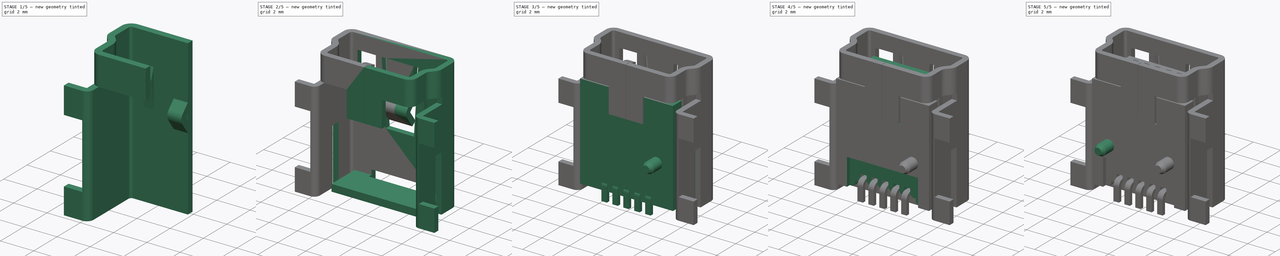
[diagram: build sequence overview — one tinted view per stage of 5, left to right]
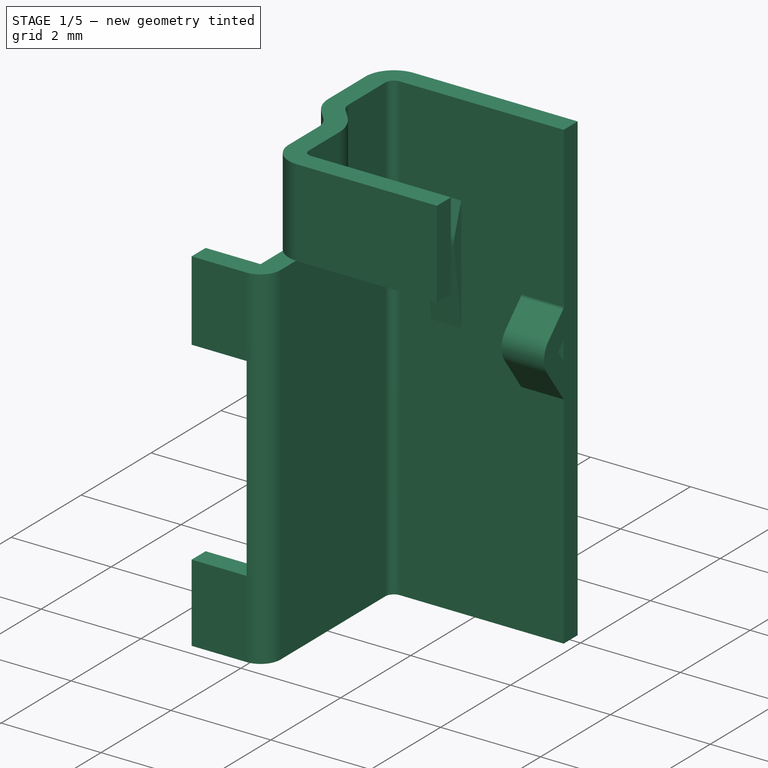
[diagram: stage 1 of 5 — iso view after this stage's code; geometry added in this stage tinted green]
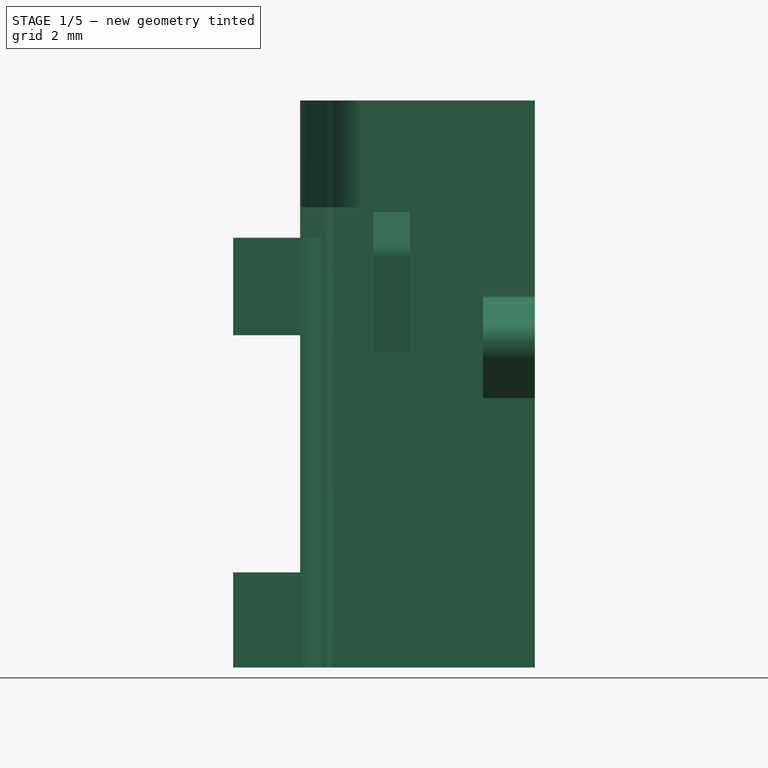
[diagram: stage 1 of 5 — front view after this stage's code; geometry added in this stage tinted green]
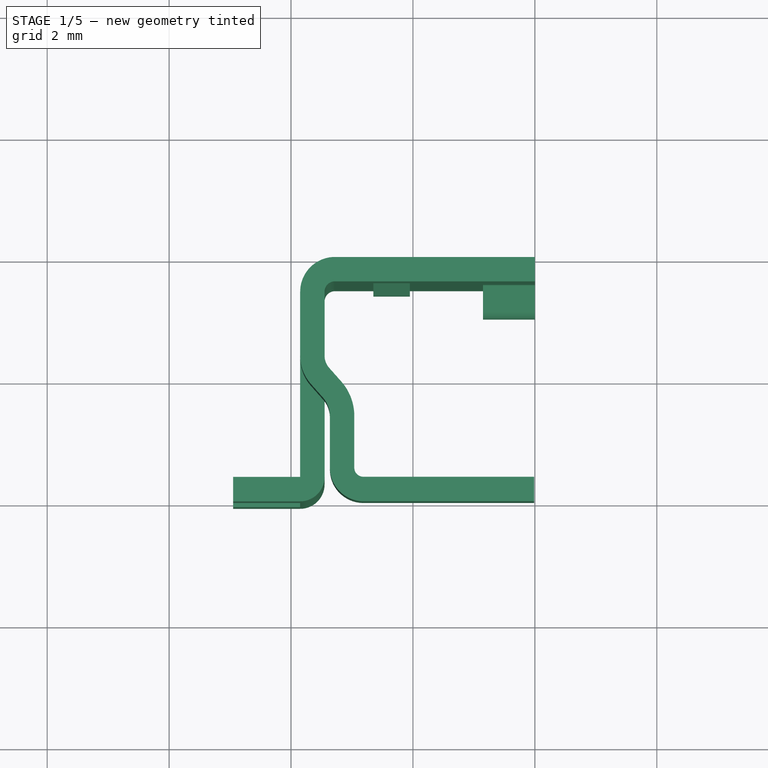
[diagram: stage 1 of 5 — top view after this stage's code; geometry added in this stage tinted green]
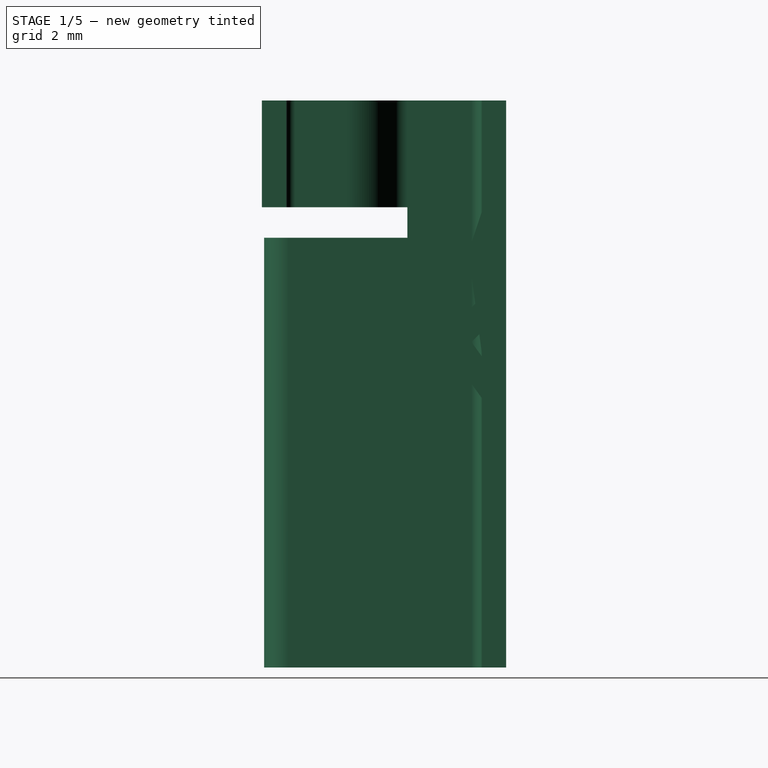
[diagram: stage 1 of 5 — right view after this stage's code; geometry added in this stage tinted green]
FCSTD DOCUMENT  (FreeCAD 0.16R5669 (Git))
Label: micro-usb-b-female-smd
License: CC-BY 3.0
LicenseURL: http://creativecommons.org/licenses/by/3.0/
objects: Sketcher::SketchObject×28, PartDesign::Pocket×13, Part::Feature×7, Part::FeaturePython×5, Part::Sweep×5, PartDesign::Pad×4, Part::MultiFuse×4, App::DocumentObjectGroup×4, PartDesign::LinearPattern×2, PartDesign::Mirrored×1, PartDesign::Revolution×1, Part::Mirroring×1, Part::Compound×1
note: 90 computed .brp shape members not serialized (recipe doc carries the construction recipe); baked Part::Feature solids carry a one-line shape summary decoded from their .brp

FEATURE [App::DocumentObjectGroup] Group002  label="orig"
  Group = -> [Part__Feature005,Part__Feature004,Part__Feature002,Part__Feature,Part__Feature001,Part__Feature003]
FEATURE [Sketcher::SketchObject] Sketch013  label="cover-path"
  Placement = pos=(0,0,-0.5) rot=(0,0,1;0rad)
  sketch-geometry (5):
    g0: LineSegment StartX=-4.95 StartY=0.15 StartZ=0 EndX=-3.85 EndY=0.15 EndZ=0
    g1: LineSegment StartX=-3.65 StartY=0.35 StartZ=0 EndX=-3.65 EndY=3.35 EndZ=0
    g2: LineSegment StartX=-3.28 StartY=3.72 StartZ=0 EndX=0 EndY=3.72 EndZ=0
    g3: ArcOfCircle CenterX=-3.85 CenterY=0.35 CenterZ=0 NormalX=0 NormalY=0 NormalZ=1 Radius=0.2 StartAngle=4.71239 EndAngle=6.28319
    g4: ArcOfCircle CenterX=-3.28 CenterY=3.35 CenterZ=0 NormalX=0 NormalY=0 NormalZ=1 Radius=0.37 StartAngle=1.5708 EndAngle=3.14159
  constraints (14):
    c: Horizontal(g0)
    c: Vertical(g1)
    c: PointOnObject(g2,g-2)
    c: Horizontal(g2)
    c: DistanceY(g-1,g0) = 0.15
    c: DistanceX(g-1,g0) = -4.95
    c: Tangent(g0,g3)
    c: Tangent(g1,g3)
    c: Tangent(g1,g4)
    c: Tangent(g2,g4)
    c: DistanceX(g0) = 1.1
    c: Radius(g3) = 0.2
    c: Radius(g4) = 0.37
    c: DistanceY(g1) = 3
FEATURE [Sketcher::SketchObject] Sketch014  label="cover-section"
  Placement = pos=(-4.95,-0.05,0.04) rot=(0.57735,0.57735,0.57735;2.0944rad)
  sketch-geometry (4):
    g0: LineSegment StartX=0 StartY=8.76 StartZ=0 EndX=0.4 EndY=8.76 EndZ=0
    g1: LineSegment StartX=0.4 StartY=8.76 StartZ=0 EndX=0.4 EndY=-0.54 EndZ=0
    g2: LineSegment StartX=0.4 StartY=-0.54 StartZ=0 EndX=0 EndY=-0.54 EndZ=0
    g3: LineSegment StartX=0 StartY=-0.54 StartZ=0 EndX=0 EndY=8.76 EndZ=0
  constraints (12):
    c: Coincident(g0,g1)
    c: Coincident(g1,g2)
    c: Coincident(g2,g3)
    c: Coincident(g3,g0)
    c: Horizontal(g0)
    c: Horizontal(g2)
    c: Vertical(g1)
    c: Vertical(g3)
    c: PointOnObject(g2,g-2)
    c: DistanceY(g1) = -9.3
    c: DistanceX(g0) = 0.4
    c: DistanceY(g-1,g2) = -0.54
FEATURE [Part::Sweep] Sweep001  label="cover-1"
  Frenet = true
  Sections = -> [Sketch014]
  Solid = true
  Spine = -> Sketch013
  Transition = 1
FEATURE [Sketcher::SketchObject] Sketch015  label="front-path-sketch"
  Placement = pos=(0,0,8.7) rot=(0,0,1;0rad)
  sketch-geometry (7):
    g0: LineSegment StartX=-3.51196 StartY=2.05539 StartZ=0 EndX=-3.31318 EndY=1.8307 EndZ=0
    g1: LineSegment StartX=-3.15 StartY=1.4 StartZ=0 EndX=-3.15 EndY=0.55 EndZ=0
    g2: LineSegment StartX=-2.8 StartY=0.2 StartZ=0 EndX=0 EndY=0.2 EndZ=0
    g3: ArcOfCircle CenterX=-2.8 CenterY=0.55 CenterZ=0 NormalX=0 NormalY=0 NormalZ=1 Radius=0.35 StartAngle=3.14159 EndAngle=4.71239
    g4: ArcOfCircle CenterX=-3.8 CenterY=1.4 CenterZ=0 NormalX=0 NormalY=0 NormalZ=1 Radius=0.65 StartAngle=0 EndAngle=0.724312
    g5: ArcOfCircle CenterX=-3.13749 CenterY=2.3867 CenterZ=0 NormalX=0 NormalY=0 NormalZ=1 Radius=0.5 StartAngle=3.14159 EndAngle=3.8659
    g6: LineSegment [constr] StartX=-3.63749 StartY=2.3867 StartZ=0 EndX=-3.13749 EndY=2.3867 EndZ=0
  constraints (19):
    c: Vertical(g1)
    c: PointOnObject(g2,g-2)
    c: Horizontal(g2)
    c: Tangent(g1,g3)
    c: Tangent(g2,g3)
    c: Tangent(g0,g4)
    c: Tangent(g1,g4)
    c: Tangent(g0,g5)
    c: DistanceY(g-1,g2) = 0.2
    c: DistanceX(g2) = 2.8
    c: Radius(g3) = 0.35
    c: Angle(g0,g1) = 2.41728
    c: DistanceY(g1) = -0.85
    c: Radius(g4) = 0.65
    c: Distance(g0) = 0.3
    c: Radius(g5) = 0.5
    c: Horizontal(g6)
    c: Coincident(g6,g5)
    c: Coincident(g6,g5)
FEATURE [Sketcher::SketchObject] Sketch016  label="front-section"
  Placement = pos=(0,1.82295,2.19247) rot=(0.57735,0.57735,0.57735;2.0944rad)
  sketch-geometry (4):
    g0: LineSegment StartX=-1.82295 StartY=6.68682 StartZ=0 EndX=-1.42295 EndY=6.68682 EndZ=0
    g1: LineSegment StartX=-1.42295 StartY=6.68682 StartZ=0 EndX=-1.42295 EndY=4.93682 EndZ=0
    g2: LineSegment StartX=-1.42295 StartY=4.93682 StartZ=0 EndX=-1.82295 EndY=4.93682 EndZ=0
    g3: LineSegment StartX=-1.82295 StartY=4.93682 StartZ=0 EndX=-1.82295 EndY=6.68682 EndZ=0
  constraints (10):
    c: Coincident(g0,g1)
    c: Coincident(g1,g2)
    c: Coincident(g2,g3)
    c: Coincident(g3,g0)
    c: Horizontal(g0)
    c: Horizontal(g2)
    c: Vertical(g1)
    c: Vertical(g3)
    c: DistanceX(g0) = 0.4
    c: DistanceY(g3) = 1.75
FEATURE [Part::Sweep] Sweep002
  Frenet = true
  Placement = pos=(-0.0125131,-0.0866998,-0.0792893) rot=(0,0,1;0rad)
  Sections = -> [Sketch016]
  Solid = true
  Spine = -> Sketch015
  Transition = 1
FEATURE [Sketcher::SketchObject] Sketch017  label="cover-2-sketch"
  ExternalGeometry = -> [Sweep001]
  Placement = pos=(-4.95,0,0) rot=(0.57735,-0.57735,-0.57735;2.0944rad)
  Support = -> Sweep001 [Face20]
  sketch-geometry (4):
    g0: LineSegment StartX=-2.3 StartY=8.8 StartZ=0 EndX=0.05 EndY=8.8 EndZ=0
    g1: LineSegment StartX=0.05 StartY=8.8 StartZ=0 EndX=0.05 EndY=6.55 EndZ=0
    g2: LineSegment StartX=0.05 StartY=6.55 StartZ=0 EndX=-2.3 EndY=6.55 EndZ=0
    g3: LineSegment StartX=-2.3 StartY=6.55 StartZ=0 EndX=-2.3 EndY=8.8 EndZ=0
  constraints (11):
    c: Coincident(g0,g1)
    c: Coincident(g1,g2)
    c: Coincident(g2,g3)
    c: Coincident(g3,g0)
    c: Horizontal(g0)
    c: Horizontal(g2)
    c: Vertical(g1)
    c: Vertical(g3)
    c: DistanceY(g1) = -2.25
    c: Coincident(g-3,g0)
    c: DistanceX(g0) = 2.35
FEATURE [PartDesign::Pocket] Pocket008  label="cover-2"
  Length = 5
  Sketch = -> Sketch017
  Type = 1
FEATURE [Part::MultiFuse] Fusion001  label="cover-3"
  Shapes = -> [Sweep002,Pocket008]
FEATURE [Sketcher::SketchObject] Sketch018
  ExternalGeometry = -> [Fusion001]
  Placement = pos=(0,0.35,0) rot=(0,0.707107,0.707107;3.14159rad)
  Support = -> Fusion001 [Face19]
  sketch-geometry (4):
    g0: LineSegment StartX=4.95 StartY=4.95 StartZ=0 EndX=3.85 EndY=4.95 EndZ=0
    g1: LineSegment StartX=3.85 StartY=4.95 StartZ=0 EndX=3.85 EndY=1.06 EndZ=0
    g2: LineSegment StartX=3.85 StartY=1.06 StartZ=0 EndX=4.95 EndY=1.06 EndZ=0
    g3: LineSegment StartX=4.95 StartY=1.06 StartZ=0 EndX=4.95 EndY=4.95 EndZ=0
  constraints (12):
    c: Coincident(g0,g1)
    c: Coincident(g1,g2)
    c: Coincident(g2,g3)
    c: Coincident(g3,g0)
    c: Horizontal(g0)
    c: Horizontal(g2)
    c: Vertical(g1)
    c: Vertical(g3)
    c: PointOnObject(g2,g-4)
    c: PointOnObject(g1,g-3)
    c: DistanceY(g3) = 3.89
    c: DistanceY(g-1,g1) = 1.06
FEATURE [PartDesign::Pocket] Pocket009
  Length = 5
  Sketch = -> Sketch018
  Type = 1
FEATURE [Sketcher::SketchObject] Sketch024  label="path-1-sketch"
  Placement = pos=(0,0,0) rot=(0.57735,0.57735,0.57735;2.0944rad)
  sketch-geometry (4):
    g0: LineSegment StartX=3.7 StartY=4.6 StartZ=0 EndX=3.7 EndY=4.68 EndZ=0
    g1: LineSegment StartX=3.7 StartY=4.68 StartZ=0 EndX=3.49503 EndY=6.22648 EndZ=0
    g2: LineSegment StartX=3.50775 StartY=6.36054 StartZ=0 EndX=3.7065 EndY=6.95836 EndZ=0
    g3: ArcOfCircle CenterX=3.79243 CenterY=6.26589 CenterZ=0 NormalX=0 NormalY=0 NormalZ=1 Radius=0.3 StartAngle=2.82063 EndAngle=3.27337
  constraints (12):
    c: Coincident(g0,g1)
    c: Tangent(g1,g3)
    c: Tangent(g2,g3)
    c: Vertical(g0)
    c: DistanceX(g-1,g0) = 3.7
    c: DistanceY(g-1,g0) = 4.6
    c: DistanceY(g0) = 0.08
    c: Angle(g1,g0) = 3.00982
    c: Distance(g1) = 1.56
    c: Radius(g3) = 0.3
    c: Angle(g1,g2) = 2.68885
    c: Distance(g2) = 0.63
FEATURE [Sketcher::SketchObject] Sketch025  label="section-1-sketch"
  Placement = pos=(0.0878427,3.52111,4.6) rot=(0,0,1;0rad)
  sketch-geometry (4):
    g0: LineSegment StartX=-0.387843 StartY=0.378889 StartZ=0 EndX=0.212157 EndY=0.378889 EndZ=0
    g1: LineSegment StartX=0.212157 StartY=0.378889 StartZ=0 EndX=0.212157 EndY=-0.0211107 EndZ=0
    g2: LineSegment StartX=0.212157 StartY=-0.0211107 StartZ=0 EndX=-0.387843 EndY=-0.0211107 EndZ=0
    g3: LineSegment StartX=-0.387843 StartY=-0.0211107 StartZ=0 EndX=-0.387843 EndY=0.378889 EndZ=0
  constraints (10):
    c: Coincident(g0,g1)
    c: Coincident(g1,g2)
    c: Coincident(g2,g3)
    c: Coincident(g3,g0)
    c: Horizontal(g0)
    c: Horizontal(g2)
    c: Vertical(g1)
    c: Vertical(g3)
    c: DistanceY(g1) = -0.4
    c: DistanceX(g2) = -0.6
FEATURE [Part::Sweep] Sweep003  label="hook-1"
  Frenet = true
  Placement = pos=(-2.35,0.02,0) rot=(0,0,1;0rad)
  Sections = -> [Sketch025]
  Solid = true
  Spine = -> Sketch024
  Transition = 1
FEATURE [Sketcher::SketchObject] Sketch026  label="path-2-sketch"
  Placement = pos=(-0.425,-0.000737415,0.00178482) rot=(0.57735,0.57735,0.57735;2.0944rad)
  sketch-geometry (6):
    g0: LineSegment StartX=3.73 StartY=3.97 StartZ=0 EndX=3.20418 EndY=4.70042 EndZ=0
    g1: LineSegment StartX=3.22891 StartY=4.99814 StartZ=0 EndX=3.64082 EndY=5.40647 EndZ=0
    g2: ArcOfCircle CenterX=3.39084 CenterY=4.83479 CenterZ=0 NormalX=0 NormalY=0 NormalZ=1 Radius=0.23 StartAngle=2.35183 EndAngle=3.76555
    g3: LineSegment [constr] StartX=3.73 StartY=3.97 StartZ=0 EndX=3.23 EndY=3.97 EndZ=0
    g4: ArcOfCircle CenterX=3.45074 CenterY=5.59822 CenterZ=0 NormalX=0 NormalY=0 NormalZ=1 Radius=0.27 StartAngle=5.49342 EndAngle=6.28319
    g5: LineSegment [constr] StartX=3.45074 StartY=5.59822 StartZ=0 EndX=3.72074 EndY=5.59822 EndZ=0
  constraints (18):
    c: Tangent(g0,g2)
    c: Tangent(g1,g2)
    c: DistanceX(g-1,g0) = 3.73
    c: DistanceY(g-1,g0) = 3.97
    c: Horizontal(g3)
    c: Coincident(g3,g0)
    c: Angle(g0,g3) = 0.946841
    c: DistanceX(g3) = -0.5
    c: Distance(g0) = 0.9
    c: Radius(g2) = 0.23
    c: Angle(g0,g1) = 1.72788
    c: Distance(g1) = 0.58
    c: Coincident(g4,g1)
    c: Horizontal(g5)
    c: Coincident(g5,g4)
    c: Coincident(g5,g4)
    c: Tangent(g1,g4)
    c: Radius(g4) = 0.27
FEATURE [Sketcher::SketchObject] Sketch027  label="section-2-sketch"
  Placement = pos=(-0.752671,3.47798,5.6) rot=(0,0,1;0rad)
  sketch-geometry (4):
    g0: LineSegment StartX=-0.0973287 StartY=0.442016 StartZ=0 EndX=0.752671 EndY=0.442016 EndZ=0
    g1: LineSegment StartX=0.752671 StartY=0.442016 StartZ=0 EndX=0.752671 EndY=0.0420163 EndZ=0
    g2: LineSegment StartX=0.752671 StartY=0.0420163 StartZ=0 EndX=-0.0973287 EndY=0.0420163 EndZ=0
    g3: LineSegment StartX=-0.0973287 StartY=0.0420163 StartZ=0 EndX=-0.0973287 EndY=0.442016 EndZ=0
  constraints (10):
    c: Coincident(g0,g1)
    c: Coincident(g1,g2)
    c: Coincident(g2,g3)
    c: Coincident(g3,g0)
    c: Horizontal(g0)
    c: Horizontal(g2)
    c: Vertical(g1)
    c: Vertical(g3)
    c: DistanceY(g1) = -0.4
    c: DistanceX(g0) = 0.85
FEATURE [Part::Sweep] Sweep004  label="hook-2"
  Frenet = true
  Sections = -> [Sketch027]
  Solid = true
  Spine = -> Sketch026
  Transition = 1
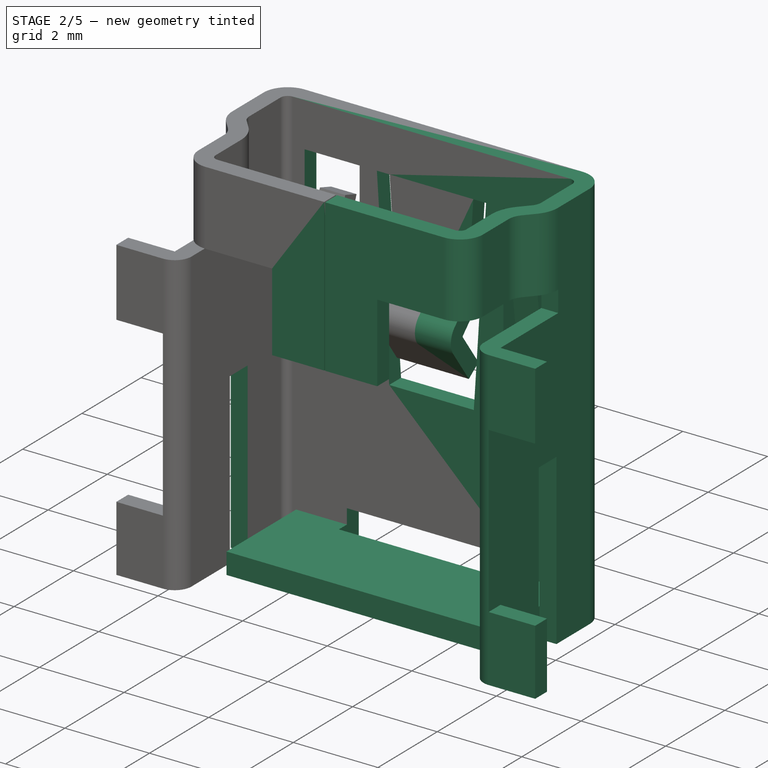
[diagram: stage 2 of 5 — iso view after this stage's code; geometry added in this stage tinted green]
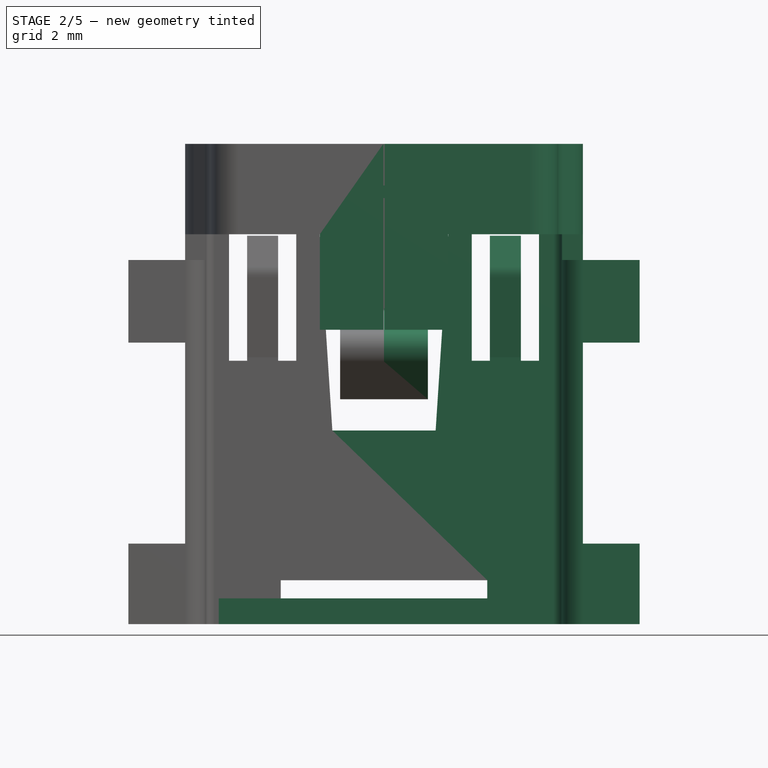
[diagram: stage 2 of 5 — front view after this stage's code; geometry added in this stage tinted green]
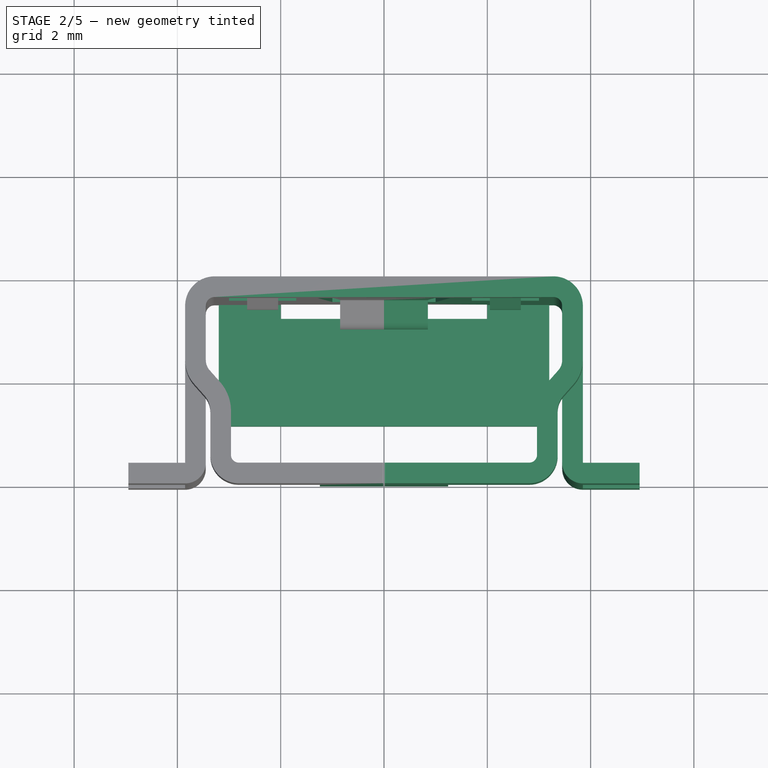
[diagram: stage 2 of 5 — top view after this stage's code; geometry added in this stage tinted green]
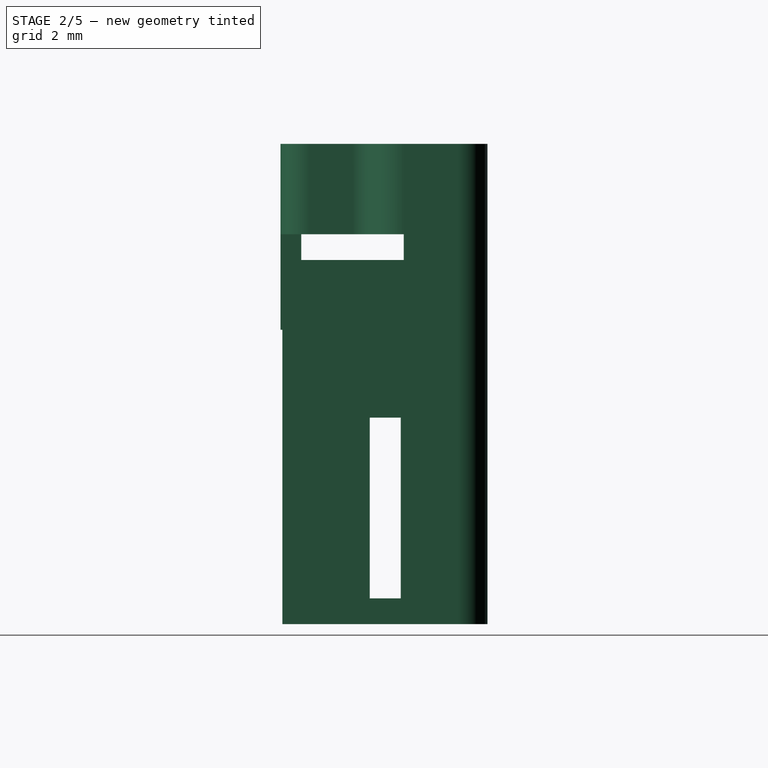
[diagram: stage 2 of 5 — right view after this stage's code; geometry added in this stage tinted green]
FEATURE [Sketcher::SketchObject] Sketch019
  Placement = pos=(0,3.52,0) rot=(1,0,0;1.5708rad)
  Support = -> Pocket009 [Face19]
  sketch-geometry (4):
    g0: LineSegment StartX=-3.2 StartY=-0.5 StartZ=0 EndX=0 EndY=-0.5 EndZ=0
    g1: LineSegment StartX=0 StartY=-0.5 StartZ=0 EndX=0 EndY=0 EndZ=0
    g2: LineSegment StartX=0 StartY=0 StartZ=0 EndX=-3.2 EndY=0 EndZ=0
    g3: LineSegment StartX=-3.2 StartY=0 StartZ=0 EndX=-3.2 EndY=-0.5 EndZ=0
  constraints (12):
    c: Coincident(g0,g1)
    c: Coincident(g1,g2)
    c: Coincident(g2,g3)
    c: Coincident(g3,g0)
    c: Horizontal(g0)
    c: Horizontal(g2)
    c: Vertical(g1)
    c: Vertical(g3)
    c: PointOnObject(g1,g-1)
    c: DistanceX(g2) = -3.2
    c: DistanceY(g1) = 0.5
    c: PointOnObject(g1,g-2)
FEATURE [PartDesign::Pad] Pad002  label="back-wall"
  Length = 2.35
  Length2 = 100
  Sketch = -> Sketch019
  Type = 0
FEATURE [Sketcher::SketchObject] Sketch020  label="cover-4-sketch"
  ExternalGeometry = -> [Pad002]
  Placement = pos=(0,3.92,0) rot=(0,0.707107,0.707107;3.14159rad)
  Support = -> Pad002 [Face21]
  sketch-geometry (4):
    g0: LineSegment StartX=0 StartY=0.35 StartZ=0 EndX=2 EndY=0.35 EndZ=0
    g1: LineSegment StartX=2 StartY=0.35 StartZ=0 EndX=2 EndY=-0.5 EndZ=0
    g2: LineSegment StartX=2 StartY=-0.5 StartZ=0 EndX=0 EndY=-0.5 EndZ=0
    g3: LineSegment StartX=0 StartY=-0.5 StartZ=0 EndX=0 EndY=0.35 EndZ=0
  constraints (12):
    c: Coincident(g0,g1)
    c: Coincident(g1,g2)
    c: Coincident(g2,g3)
    c: Coincident(g3,g0)
    c: Horizontal(g0)
    c: Horizontal(g2)
    c: Vertical(g1)
    c: Vertical(g3)
    c: PointOnObject(g0,g-2)
    c: PointOnObject(g1,g-3)
    c: DistanceY(g1) = -0.85
    c: DistanceX(g0) = 2
FEATURE [PartDesign::Pocket] Pocket010  label="cover-4"
  Length = 0.67
  Sketch = -> Sketch020
  Type = 0
FEATURE [Sketcher::SketchObject] Sketch021  label="cover-5-sketch"
  ExternalGeometry = -> [Pocket010]
  Placement = pos=(-3.85,0,0) rot=(0.57735,-0.57735,-0.57735;2.0944rad)
  Support = -> Pocket010 [Face17]
  sketch-geometry (4):
    g0: LineSegment StartX=-2.24 StartY=-0.5 StartZ=0 EndX=-1.64 EndY=-0.5 EndZ=0
    g1: LineSegment StartX=-1.64 StartY=-0.5 StartZ=0 EndX=-1.64 EndY=3.5 EndZ=0
    g2: LineSegment StartX=-1.64 StartY=3.5 StartZ=0 EndX=-2.24 EndY=3.5 EndZ=0
    g3: LineSegment StartX=-2.24 StartY=3.5 StartZ=0 EndX=-2.24 EndY=-0.5 EndZ=0
  constraints (12):
    c: Coincident(g0,g1)
    c: Coincident(g1,g2)
    c: Coincident(g2,g3)
    c: Coincident(g3,g0)
    c: Horizontal(g0)
    c: Horizontal(g2)
    c: Vertical(g1)
    c: Vertical(g3)
    c: PointOnObject(g0,g-3)
    c: DistanceX(g2) = -0.6
    c: DistanceY(g1) = 4
    c: DistanceX(g-1,g0) = -1.64
FEATURE [PartDesign::Pocket] Pocket011  label="cover-5"
  Length = 0.4
  Sketch = -> Sketch021
  Type = 0
FEATURE [Sketcher::SketchObject] Sketch022  label="cover-6-sketch"
  Placement = pos=(0,3.92,0) rot=(0,0.707107,0.707107;3.14159rad)
  Support = -> Pocket011 [Face22]
  sketch-geometry (10):
    g0: LineSegment StartX=1.7 StartY=7.75 StartZ=0 EndX=3 EndY=7.75 EndZ=0
    g1: LineSegment StartX=3 StartY=7.75 StartZ=0 EndX=3 EndY=4.6 EndZ=0
    g2: LineSegment StartX=3 StartY=4.6 StartZ=0 EndX=1.7 EndY=4.6 EndZ=0
    g3: LineSegment StartX=1.7 StartY=4.6 StartZ=0 EndX=1.7 EndY=7.75 EndZ=0
    g4: LineSegment StartX=0 StartY=5.6 StartZ=0 EndX=0.85 EndY=5.6 EndZ=0
    g5: LineSegment StartX=0.85 StartY=5.6 StartZ=0 EndX=0.989034 EndY=7.75 EndZ=0
    g6: LineSegment StartX=0.989034 StartY=7.75 StartZ=0 EndX=1.291 EndY=7.75 EndZ=0
    g7: LineSegment StartX=1.291 StartY=7.75 StartZ=0 EndX=1 EndY=3.25 EndZ=0
    g8: LineSegment StartX=1 StartY=3.25 StartZ=0 EndX=0 EndY=3.25 EndZ=0
    g9: LineSegment StartX=0 StartY=3.25 StartZ=0 EndX=0 EndY=5.6 EndZ=0
  constraints (30):
    c: Coincident(g0,g1)
    c: Coincident(g1,g2)
    c: Coincident(g2,g3)
    c: Coincident(g3,g0)
    c: Horizontal(g0)
    c: Horizontal(g2)
    c: Vertical(g1)
    c: Vertical(g3)
    c: DistanceX(g-1,g2) = 1.7
    c: DistanceY(g-1,g2) = 4.6
    c: DistanceX(g2) = -1.3
    c: DistanceY(g1) = -3.15
    c: PointOnObject(g4,g-2)
    c: Horizontal(g4)
    c: Coincident(g4,g5)
    c: Coincident(g5,g6)
    c: Coincident(g6,g7)
    c: Coincident(g7,g8)
    c: Horizontal(g8)
    c: Coincident(g8,g9)
    c: Coincident(g9,g4)
    c: Vertical(g9)
    c: Horizontal(g6)
    c: PointOnObject(g6,g0)
    c: Angle(g5,g4) = 1.63537
    c: Parallel(g7,g5)
    c: DistanceX(g4) = 0.85
    c: DistanceY(g-1,g8) = 3.25
    c: DistanceX(g8) = -1
    c: DistanceY(g9) = 2.35
FEATURE [PartDesign::Pocket] Pocket012  label="cover-6"
  Length = 1
  Sketch = -> Sketch022
  Type = 0
FEATURE [Sketcher::SketchObject] Sketch023  label="cover-7-sketch"
  ExternalGeometry = -> [Pocket012]
  Placement = pos=(0,0,7.05) rot=(1,0,0;3.14159rad)
  Support = -> Pocket012 [Face2]
  sketch-geometry (4):
    g0: LineSegment StartX=-1.24251 StartY=0.0866998 StartZ=0 EndX=-0.0125131 EndY=0.0866998 EndZ=0
    g1: LineSegment StartX=-0.0125131 StartY=0.0866998 StartZ=0 EndX=-0.0125131 EndY=-0.3133 EndZ=0
    g2: LineSegment StartX=-0.0125131 StartY=-0.3133 StartZ=0 EndX=-1.24251 EndY=-0.3133 EndZ=0
    g3: LineSegment StartX=-1.24251 StartY=-0.3133 StartZ=0 EndX=-1.24251 EndY=0.0866998 EndZ=0
  constraints (11):
    c: Coincident(g0,g1)
    c: Coincident(g1,g2)
    c: Coincident(g2,g3)
    c: Coincident(g3,g0)
    c: Horizontal(g0)
    c: Horizontal(g2)
    c: Vertical(g1)
    c: Vertical(g3)
    c: Coincident(g0,g-3)
    c: Coincident(g1,g-4)
    c: DistanceX(g2,g1) = 1.23
FEATURE [PartDesign::Pad] Pad003  label="cover-7"
  Length = 1.85
  Length2 = 100
  Sketch = -> Sketch023
  Type = 0
FEATURE [Part::MultiFuse] Fusion002  label="cover-8"
  Shapes = -> [Pad003,Sweep003,Sweep004]
FEATURE [Part::Mirroring] Part__Mirroring  label="cover-8 (Mirror #1)"
  Base = (0,0,0)
  Normal = (1,0,0)
  Source = -> Fusion002
FEATURE [Part::MultiFuse] Fusion003  label="cover-9"
  Shapes = -> [Part__Mirroring,Fusion002]
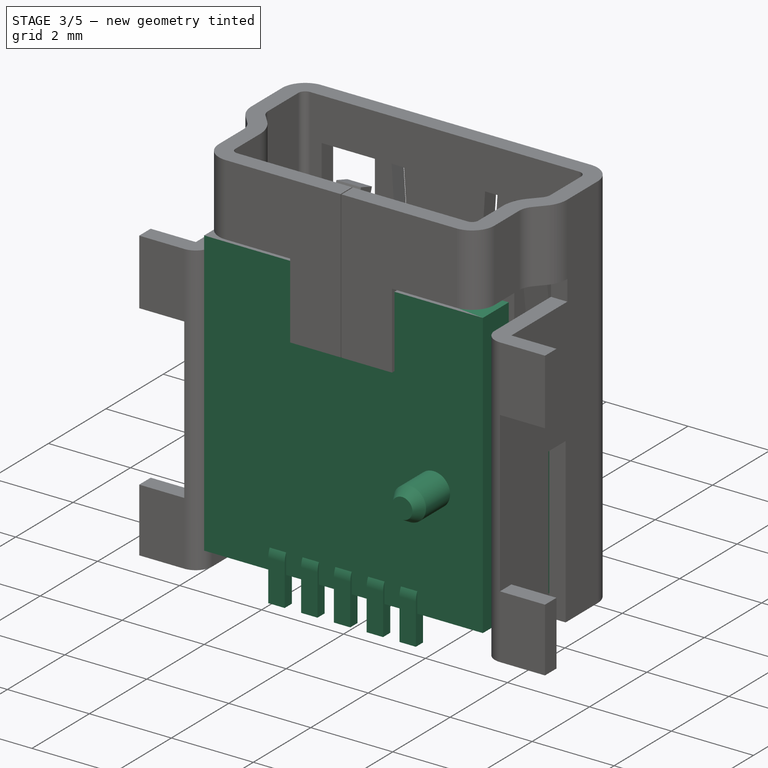
[diagram: stage 3 of 5 — iso view after this stage's code; geometry added in this stage tinted green]
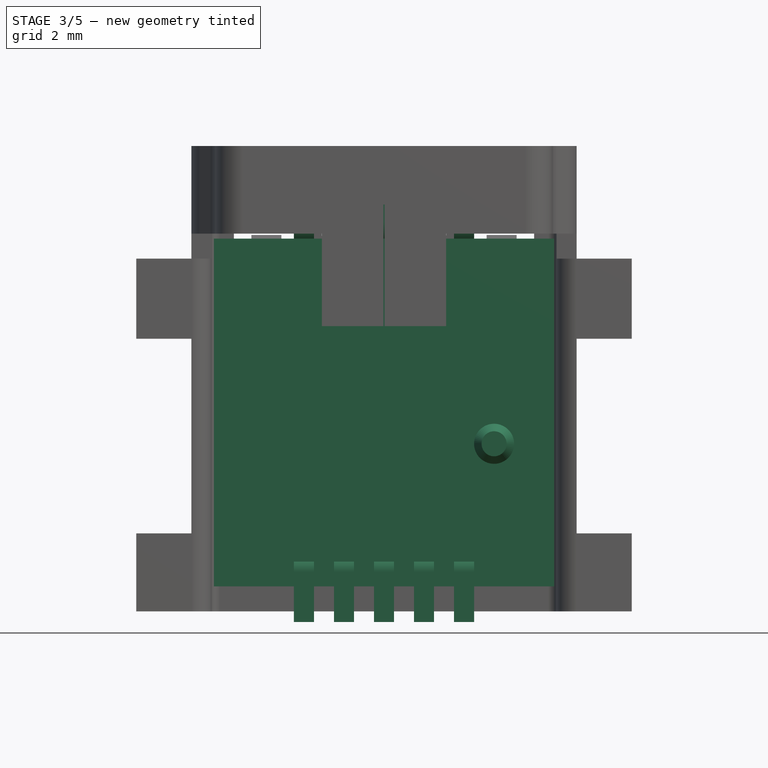
[diagram: stage 3 of 5 — front view after this stage's code; geometry added in this stage tinted green]
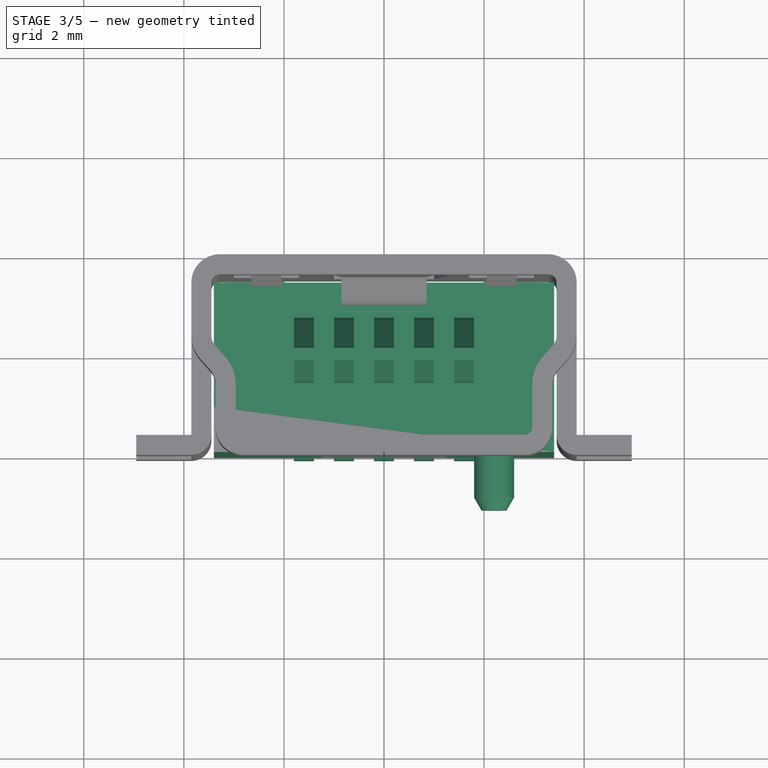
[diagram: stage 3 of 5 — top view after this stage's code; geometry added in this stage tinted green]
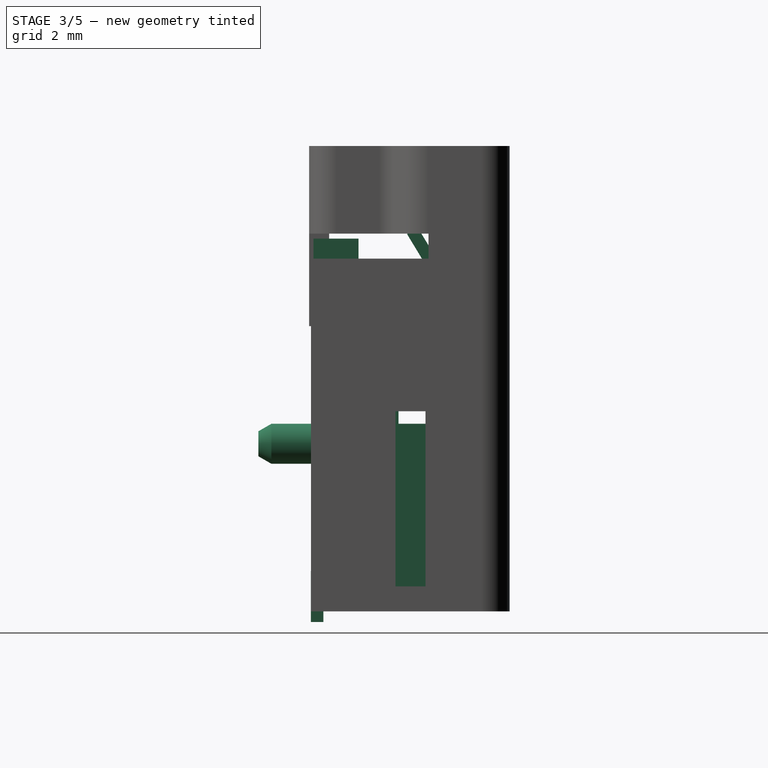
[diagram: stage 3 of 5 — right view after this stage's code; geometry added in this stage tinted green]
FEATURE [Part::Feature] Part__Feature  label="USB2066-05-RBHM-15-STB-00-01-A_revD"
  shape: bbox 0.625 x 2.795 x 8.384 mm, 95 faces (baked)
FEATURE [Part::Feature] Part__Feature001  label="USB2066-05-RBHM-15-STB-00-01-A_revD001"
  shape: bbox 0.625 x 2.795 x 8.384 mm, 95 faces (baked)
FEATURE [Part::Feature] Part__Feature002  label="USB2066-05-RBHM-15-STB-00-01-A_revD002"
  shape: bbox 0.625 x 2.795 x 8.384 mm, 95 faces (baked)
FEATURE [Part::Feature] Part__Feature003  label="inner-part-orig"
  shape: bbox 7.6 x 4.55 x 7.85 mm, 223 faces (baked)
FEATURE [Part::Feature] Part__Feature004  label="USB2066-05-RBHM-15-STB-00-01-A_revD004"
  shape: bbox 0.625 x 2.795 x 8.384 mm, 95 faces (baked)
FEATURE [Part::Feature] Part__Feature005  label="USB2066-05-RBHM-15-STB-00-01-A_revD005"
  shape: bbox 0.625 x 2.795 x 8.384 mm, 95 faces (baked)
FEATURE [Part::Feature] Part__Feature006  label="USB2066-05-RBHM-15-STB-00-01-A_revD006"
  shape: bbox 9.902 x 3.961 x 9.256 mm, 323 faces (baked)
FEATURE [Sketcher::SketchObject] Sketch  label="main-body-sketch"
  Placement = pos=(0,0,0) rot=(0.57735,0.57735,0.57735;2.0944rad)
  sketch-geometry (6):
    g0: LineSegment StartX=0 StartY=6.95 StartZ=0 EndX=0.9 EndY=6.95 EndZ=0
    g1: LineSegment StartX=0.9 StartY=6.95 StartZ=0 EndX=0.9 EndY=3.25 EndZ=0
    g2: LineSegment StartX=0 StartY=0 StartZ=0 EndX=0 EndY=6.95 EndZ=0
    g3: LineSegment StartX=0.9 StartY=3.25 StartZ=0 EndX=3.45 EndY=3.25 EndZ=0
    g4: LineSegment StartX=3.45 StartY=3.25 StartZ=0 EndX=3.45 EndY=0 EndZ=0
    g5: LineSegment StartX=3.45 StartY=0 StartZ=0 EndX=0 EndY=0 EndZ=0
  constraints (17):
    c: Coincident(g0,g1)
    c: Coincident(g2,g0)
    c: Horizontal(g0)
    c: Vertical(g1)
    c: Vertical(g2)
    c: DistanceY(g2) = 6.95
    c: DistanceX(g0) = 0.9
    c: Coincident(g2,g-1)
    c: Horizontal(g3)
    c: Coincident(g3,g4)
    c: Vertical(g4)
    c: Coincident(g4,g5)
    c: Horizontal(g5)
    c: Coincident(g5,g-1)
    c: Coincident(g3,g1)
    c: DistanceY(g4) = -3.25
    c: DistanceX(g5) = -3.45
FEATURE [PartDesign::Pad] Pad  label="main-body"
  Length = 6.8
  Length2 = 100
  Midplane = true
  Placement = pos=(0,0,0) rot=(0.57735,0.57735,0.57735;2.0944rad)
  Sketch = -> Sketch
  Type = 0
FEATURE [Sketcher::SketchObject] Sketch010
  Placement = pos=(-2.2,0,2.85) rot=(0,0,1;0rad)
  sketch-geometry (5):
    g0: LineSegment StartX=0 StartY=0 StartZ=0 EndX=0.400111 EndY=0 EndZ=0
    g1: LineSegment StartX=0.400111 StartY=0 StartZ=0 EndX=0.400111 EndY=-0.84 EndZ=0
    g2: LineSegment StartX=0 StartY=-1.1 StartZ=0 EndX=0 EndY=0 EndZ=0
    g3: LineSegment StartX=0.400111 StartY=-0.84 StartZ=0 EndX=0.25 EndY=-1.1 EndZ=0
    g4: LineSegment StartX=0.25 StartY=-1.1 StartZ=0 EndX=0 EndY=-1.1 EndZ=0
  constraints (14):
    c: Coincident(g0,g1)
    c: Coincident(g2,g0)
    c: Horizontal(g0)
    c: Vertical(g1)
    c: Vertical(g2)
    c: Coincident(g0,g-1)
    c: Coincident(g3,g4)
    c: Horizontal(g4)
    c: Coincident(g4,g2)
    c: Coincident(g3,g1)
    c: Angle(g1,g3) = 2.61799
    c: DistanceY(g1) = -0.84
    c: DistanceX(g4) = -0.25
    c: DistanceY(g2) = 1.1
FEATURE [PartDesign::Revolution] Revolution  label="support-1"
  Angle = 360
  Axis = (0,1,0)
  Base = (-2.2,0,2.85)
  Placement = pos=(-2.2,0,2.85) rot=(0,0,1;0rad)
  ReferenceAxis = -> Sketch010 [V_Axis]
  Reversed = true
  Sketch = -> Sketch010
FEATURE [Part::FeaturePython] Clone  label="Clone-of-support-1"  # Draft clone (typed FeaturePython)
  Objects = -> [Revolution]
  Placement = pos=(2.2,0,2.85) rot=(0,0,1;0rad)
  Scale = (1,1,1)
FEATURE [App::DocumentObjectGroup] Group  label="inner-part-src"
  Group = -> [Pad,Pocket,Pocket001,Pad001,Pocket002,Pocket003,Mirrored,Pocket004,Pocket005,Pocket006,LinearPattern,Pocket007,Fusion]
FEATURE [Sketcher::SketchObject] Sketch011  label="pin-path"
  Placement = pos=(0,0,0) rot=(0.57735,0.57735,0.57735;2.0944rad)
  sketch-geometry (11):
    g0: LineSegment StartX=0.07 StartY=-0.7 StartZ=0 EndX=0.07 EndY=0.3 EndZ=0
    g1: LineSegment StartX=0.39 StartY=0.62 StartZ=0 EndX=1.27 EndY=0.62 EndZ=0
    g2: LineSegment StartX=1.57 StartY=0.92 StartZ=0 EndX=1.57 EndY=3.52 EndZ=0
    g3: LineSegment StartX=1.60262 StartY=3.67822 StartZ=0 EndX=2.53215 EndY=5.83657 EndZ=0
    g4: LineSegment StartX=2.5044 StartY=6.23854 StartZ=0 EndX=2.00709 EndY=7.05969 EndZ=0
    g5: LineSegment StartX=1.94201 StartY=7.2928 StartZ=0 EndX=1.94201 EndY=7.6428 EndZ=0
    g6: ArcOfCircle CenterX=0.39 CenterY=0.3 CenterZ=0 NormalX=0 NormalY=0 NormalZ=1 Radius=0.32 StartAngle=1.5708 EndAngle=3.14159
    g7: ArcOfCircle CenterX=1.27 CenterY=0.92 CenterZ=0 NormalX=0 NormalY=0 NormalZ=1 Radius=0.3 StartAngle=4.71239 EndAngle=6.28319
    g8: ArcOfCircle CenterX=1.97 CenterY=3.52 CenterZ=0 NormalX=0 NormalY=0 NormalZ=1 Radius=0.4 StartAngle=2.73493 EndAngle=3.14159
    g9: ArcOfCircle CenterX=2.12804 CenterY=6.01061 CenterZ=0 NormalX=0 NormalY=0 NormalZ=1 Radius=0.44 StartAngle=5.87652 EndAngle=6.82773
    g10: ArcOfCircle CenterX=2.39201 CenterY=7.2928 CenterZ=0 NormalX=0 NormalY=0 NormalZ=1 Radius=0.45 StartAngle=3.14159 EndAngle=3.68614
  constraints (29):
    c: Vertical(g0)
    c: Horizontal(g1)
    c: Vertical(g2)
    c: Vertical(g5)
    c: Tangent(g0,g6)
    c: Tangent(g1,g6)
    c: Tangent(g1,g7)
    c: Tangent(g2,g7)
    c: Tangent(g2,g8)
    c: Tangent(g3,g8)
    c: Tangent(g3,g9)
    c: Tangent(g4,g9)
    c: Tangent(g4,g10)
    c: Tangent(g5,g10)
    c: DistanceY(g0) = 1
    c: Radius(g6) = 0.32
    c: DistanceX(g-1,g0) = 0.07
    c: DistanceY(g-1,g0) = -0.7
    c: DistanceX(g1) = 0.88
    c: Radius(g7) = 0.3
    c: DistanceY(g2) = 2.6
    c: Radius(g8) = 0.4
    c: Angle(g2,g3) = 2.73493
    c: Distance(g3) = 2.35
    c: Radius(g9) = 0.44
    c: Angle(g4,g3) = 2.19039
    c: Distance(g4) = 0.96
    c: Radius(g10) = 0.45
    c: DistanceY(g5) = 0.35
FEATURE [Sketcher::SketchObject] Sketch012  label="pin-section"
  Placement = pos=(0,0.07,-0.7) rot=(0,0,1;0rad)
  sketch-geometry (4):
    g0: LineSegment StartX=-0.2 StartY=0.125 StartZ=0 EndX=0.2 EndY=0.125 EndZ=0
    g1: LineSegment StartX=0.2 StartY=0.125 StartZ=0 EndX=0.2 EndY=-0.125 EndZ=0
    g2: LineSegment StartX=0.2 StartY=-0.125 StartZ=0 EndX=-0.2 EndY=-0.125 EndZ=0
    g3: LineSegment StartX=-0.2 StartY=-0.125 StartZ=0 EndX=-0.2 EndY=0.125 EndZ=0
  constraints (11):
    c: Coincident(g0,g1)
    c: Coincident(g1,g2)
    c: Coincident(g2,g3)
    c: Coincident(g3,g0)
    c: Horizontal(g0)
    c: Horizontal(g2)
    c: Vertical(g1)
    c: Vertical(g3)
    c: DistanceX(g0) = 0.4
    c: DistanceY(g3) = 0.25
    c: Symmetric(g0,g1,g-1)
FEATURE [Part::Sweep] Sweep  label="pin-1"
  Frenet = true
  Placement = pos=(-1.6,0.00448461,-0.0108393) rot=(0,0,1;0rad)
  Sections = -> [Sketch012]
  Solid = true
  Spine = -> Sketch011
  Transition = 1
FEATURE [Part::FeaturePython] Array  label="pin-array"  # Draft array (typed FeaturePython)
  Angle = 360
  ArrayType = 0
  Axis = (0,0,1)
  Base = -> Sweep
  Center = (0,0,0)
  IntervalX = (0.8,0,0)
  IntervalY = (0,1,0)
  IntervalZ = (0,0,1)
  NumberPolar = 1
  NumberX = 5
  NumberY = 1
  NumberZ = 1
FEATURE [App::DocumentObjectGroup] Group001  label="pins-src"
  Group = -> [Sketch011,Array]
FEATURE [Part::FeaturePython] Clone002  label="pins-array"  # Draft clone (typed FeaturePython)
  Objects = -> [Array]
  Scale = (1,1,1)
FEATURE [App::DocumentObjectGroup] Group003  label="cover-src"
  Group = -> [Sketch013,Sweep001,Sketch015,Fusion001,Pocket009,Pad002,Pocket010,Pocket011,Pocket012,Sketch024,Sketch026,Part__Mirroring,Fusion003]
FEATURE [Part::FeaturePython] Clone003  label="cover"  # Draft clone (typed FeaturePython)
  Objects = -> [Fusion003]
  Scale = (1,1,1)
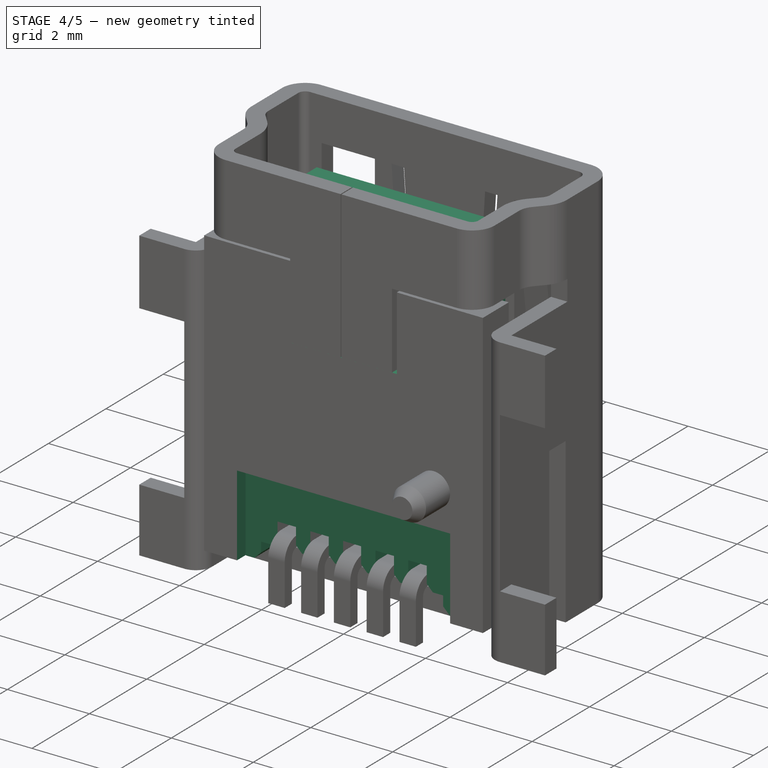
[diagram: stage 4 of 5 — iso view after this stage's code; geometry added in this stage tinted green]
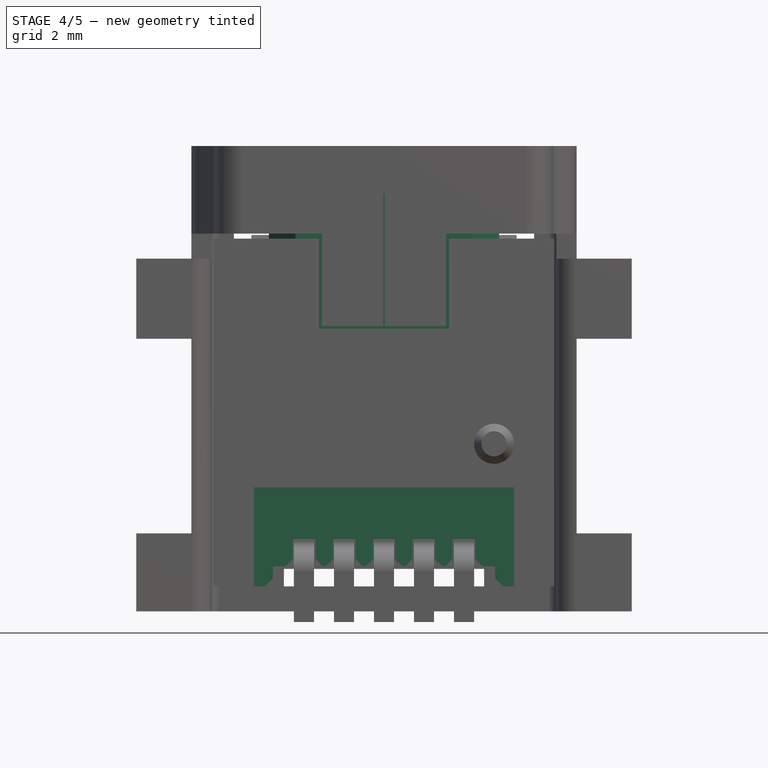
[diagram: stage 4 of 5 — front view after this stage's code; geometry added in this stage tinted green]
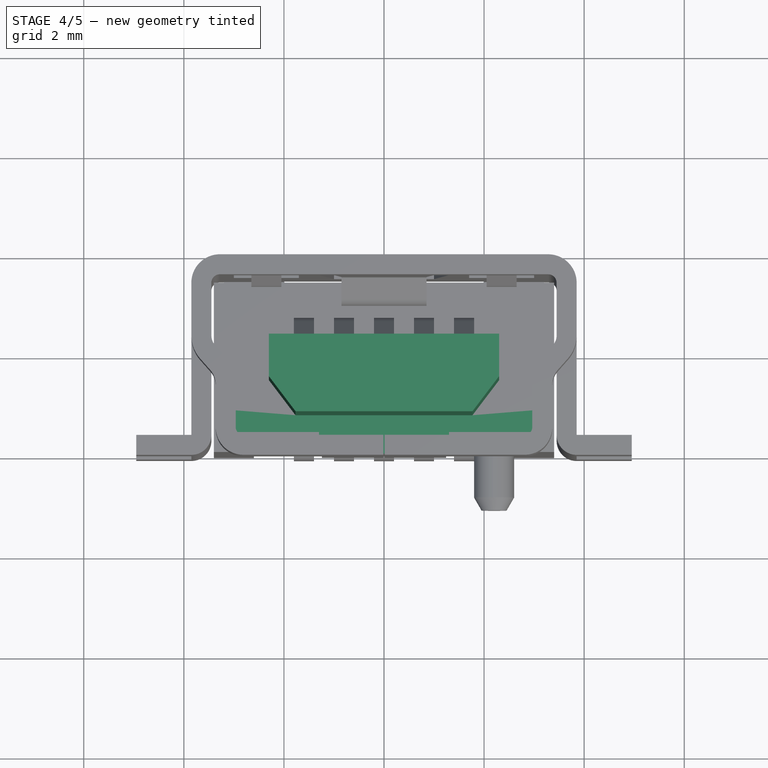
[diagram: stage 4 of 5 — top view after this stage's code; geometry added in this stage tinted green]
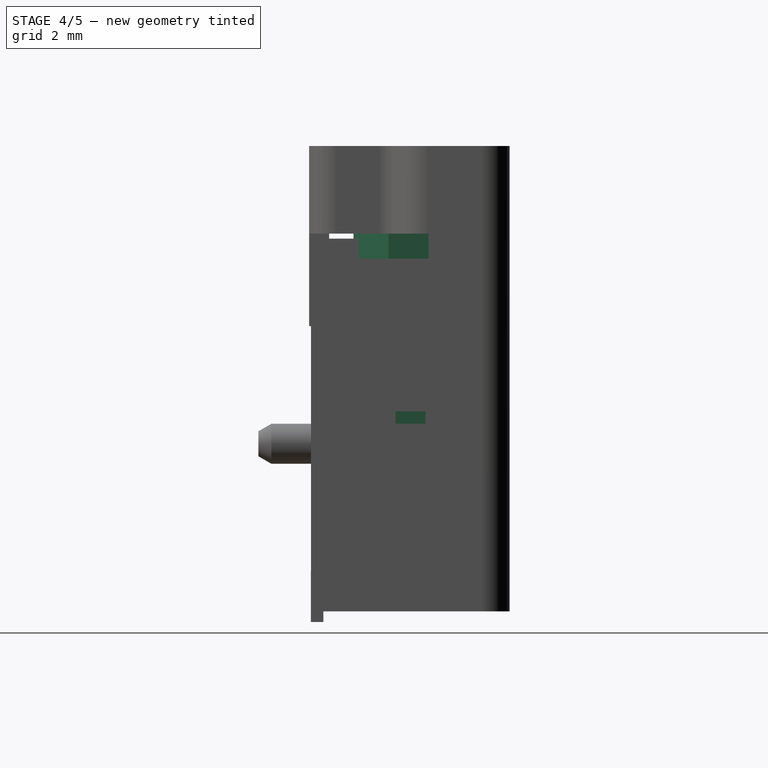
[diagram: stage 4 of 5 — right view after this stage's code; geometry added in this stage tinted green]
FEATURE [Sketcher::SketchObject] Sketch001  label="cutout-1-sketch"
  ExternalGeometry = -> [Pad]
  Placement = pos=(0,0.9,0) rot=(0.57735,0.57735,0.57735;4.18879rad)
  Support = -> Pad [Face2]
  sketch-geometry (4):
    g0: LineSegment StartX=3.25 StartY=3 StartZ=0 EndX=6.95 EndY=3 EndZ=0
    g1: LineSegment StartX=6.95 StartY=3 StartZ=0 EndX=6.95 EndY=-3 EndZ=0
    g2: LineSegment StartX=6.95 StartY=-3 StartZ=0 EndX=3.25 EndY=-3 EndZ=0
    g3: LineSegment StartX=3.25 StartY=-3 StartZ=0 EndX=3.25 EndY=3 EndZ=0
  constraints (12):
    c: Coincident(g0,g1)
    c: Coincident(g1,g2)
    c: Coincident(g2,g3)
    c: Coincident(g3,g0)
    c: Horizontal(g0)
    c: Horizontal(g2)
    c: Vertical(g1)
    c: Vertical(g3)
    c: Symmetric(g0,g2,g-1)
    c: PointOnObject(g0,g-3)
    c: PointOnObject(g0,g-4)
    c: DistanceY(g0,g-4) = 0.4
FEATURE [PartDesign::Pocket] Pocket  label="cutout-1"
  Length = 0.5
  Placement = pos=(0,0,0) rot=(0.57735,0.57735,0.57735;2.0944rad)
  Sketch = -> Sketch001
  Type = 0
FEATURE [Sketcher::SketchObject] Sketch002  label="cutout-2-sketch"
  ExternalGeometry = -> [Pocket]
  Placement = pos=(0,0,0) rot=(0.57735,0.57735,-0.57735;2.0944rad)
  Support = -> Pocket [Face9]
  sketch-geometry (4):
    g0: LineSegment StartX=-6.95 StartY=1.3 StartZ=0 EndX=-5.15 EndY=1.3 EndZ=0
    g1: LineSegment StartX=-5.15 StartY=1.3 StartZ=0 EndX=-5.15 EndY=-1.3 EndZ=0
    g2: LineSegment StartX=-5.15 StartY=-1.3 StartZ=0 EndX=-6.95 EndY=-1.3 EndZ=0
    g3: LineSegment StartX=-6.95 StartY=-1.3 StartZ=0 EndX=-6.95 EndY=1.3 EndZ=0
  constraints (12):
    c: Coincident(g0,g1)
    c: Coincident(g1,g2)
    c: Coincident(g2,g3)
    c: Coincident(g3,g0)
    c: Horizontal(g0)
    c: Horizontal(g2)
    c: Vertical(g1)
    c: Vertical(g3)
    c: Symmetric(g0,g2,g-1)
    c: PointOnObject(g0,g-3)
    c: DistanceY(g1) = -2.6
    c: DistanceX(g0) = 1.8
FEATURE [PartDesign::Pocket] Pocket001  label="cutout-2"
  Length = 3
  Placement = pos=(0,0,0) rot=(0.57735,0.57735,0.57735;2.0944rad)
  Sketch = -> Sketch002
  Type = 0
FEATURE [Sketcher::SketchObject] Sketch003  label="pad-1-sketch"
  Placement = pos=(0,0,3.25) rot=(0,0,-1;1.5708rad)
  Support = -> Pocket001 [Face8]
  sketch-geometry (6):
    g0: LineSegment StartX=-2.35 StartY=2.3 StartZ=0 EndX=-2.35 EndY=-2.3 EndZ=0
    g1: LineSegment StartX=-2.35 StartY=-2.3 StartZ=0 EndX=-1.5 EndY=-2.3 EndZ=0
    g2: LineSegment StartX=-1.5 StartY=-2.3 StartZ=0 EndX=-0.8 EndY=-1.76867 EndZ=0
    g3: LineSegment StartX=-0.8 StartY=-1.76867 StartZ=0 EndX=-0.8 EndY=1.76867 EndZ=0
    g4: LineSegment StartX=-0.8 StartY=1.76867 StartZ=0 EndX=-1.5 EndY=2.3 EndZ=0
    g5: LineSegment StartX=-1.5 StartY=2.3 StartZ=0 EndX=-2.35 EndY=2.3 EndZ=0
  constraints (18):
    c: Vertical(g0)
    c: Coincident(g0,g1)
    c: Horizontal(g1)
    c: Coincident(g1,g2)
    c: Coincident(g2,g3)
    c: Vertical(g3)
    c: Coincident(g3,g4)
    c: Coincident(g4,g5)
    c: Horizontal(g5)
    c: Coincident(g5,g0)
    c: Symmetric(g0,g0,g-1)
    c: Symmetric(g3,g2,g-1)
    c: Symmetric(g1,g4,g-1)
    c: DistanceY(g0) = -4.6
    c: Angle(g5,g4) = 2.49233
    c: DistanceX(g3,g0) = -1.55
    c: DistanceX(g-1,g3) = -0.8
    c: DistanceX(g5) = -0.85
FEATURE [PartDesign::Pad] Pad001  label="pad-1"
  Length = 4.6
  Length2 = 100
  Placement = pos=(0,0,0) rot=(0.57735,0.57735,0.57735;2.0944rad)
  Sketch = -> Sketch003
  Type = 0
FEATURE [Sketcher::SketchObject] Sketch004  label="cutout-3-sketch"
  Placement = pos=(0,3.45,0) rot=(0.57735,0.57735,0.57735;4.18879rad)
  Support = -> Pad001 [Face9]
  sketch-geometry (4):
    g0: LineSegment StartX=0 StartY=2.6 StartZ=0 EndX=0.95 EndY=2.6 EndZ=0
    g1: LineSegment StartX=0.95 StartY=2.6 StartZ=0 EndX=0.95 EndY=-2.6 EndZ=0
    g2: LineSegment StartX=0.95 StartY=-2.6 StartZ=0 EndX=0 EndY=-2.6 EndZ=0
    g3: LineSegment StartX=0 StartY=-2.6 StartZ=0 EndX=0 EndY=2.6 EndZ=0
  constraints (12):
    c: Coincident(g0,g1)
    c: Coincident(g1,g2)
    c: Coincident(g2,g3)
    c: Coincident(g3,g0)
    c: Horizontal(g0)
    c: Horizontal(g2)
    c: Vertical(g1)
    c: Vertical(g3)
    c: Symmetric(g0,g1,g-1)
    c: DistanceY(g1) = -5.2
    c: PointOnObject(g0,g-2)
    c: DistanceX(g0) = 0.95
FEATURE [PartDesign::Pocket] Pocket002  label="cutout-3"
  Length = 2.45
  Placement = pos=(0,0,0) rot=(0.57735,0.57735,0.57735;2.0944rad)
  Sketch = -> Sketch004
  Type = 0
FEATURE [Sketcher::SketchObject] Sketch005  label="cutout-4-sketch"
  ExternalGeometry = -> [Pocket002]
  Placement = pos=(0,1,0) rot=(0.57735,0.57735,0.57735;4.18879rad)
  Support = -> Pocket002 [Face26]
  sketch-geometry (22):
    g0: LineSegment StartX=0 StartY=2.38 StartZ=0 EndX=0.16 EndY=2.22 EndZ=0
    g1: LineSegment StartX=0.16 StartY=2.22 StartZ=0 EndX=0.4 EndY=2.22 EndZ=0
    g2: LineSegment StartX=0.4 StartY=2.22 StartZ=0 EndX=0.4 EndY=1.97 EndZ=0
    g3: LineSegment StartX=0.4 StartY=1.97 StartZ=0 EndX=0.55 EndY=1.82 EndZ=0
    g4: LineSegment StartX=0.55 StartY=1.82 StartZ=0 EndX=0.95 EndY=1.82 EndZ=0
    g5: LineSegment StartX=0.95 StartY=1.82 StartZ=0 EndX=0.95 EndY=1.37 EndZ=0
    g6: LineSegment StartX=0.95 StartY=1.37 StartZ=0 EndX=0.55 EndY=1.37 EndZ=0
    g7: LineSegment StartX=0.55 StartY=1.37 StartZ=0 EndX=0.4 EndY=1.22 EndZ=0
    g8: LineSegment StartX=0.4 StartY=1.22 StartZ=0 EndX=0.4 EndY=1.17 EndZ=0
    g9: LineSegment StartX=0.4 StartY=1.17 StartZ=0 EndX=0.55 EndY=1.02 EndZ=0
    g10: LineSegment StartX=0.55 StartY=1.02 StartZ=0 EndX=0.95 EndY=1.02 EndZ=0
    g11: LineSegment StartX=0.95 StartY=1.02 StartZ=0 EndX=0.95 EndY=0.57 EndZ=0
    g12: LineSegment StartX=0.95 StartY=0.57 StartZ=0 EndX=0.55 EndY=0.57 EndZ=0
    g13: LineSegment StartX=0.55 StartY=0.57 StartZ=0 EndX=0.4 EndY=0.42 EndZ=0
    g14: LineSegment StartX=0.4 StartY=0.42 StartZ=0 EndX=0.4 EndY=0.37 EndZ=0
    g15: LineSegment StartX=0.4 StartY=0.37 StartZ=0 EndX=0.55 EndY=0.22 EndZ=0
    g16: LineSegment StartX=0.55 StartY=0.22 StartZ=0 EndX=0.95 EndY=0.22 EndZ=0
    g17: LineSegment StartX=0.95 StartY=0.22 StartZ=0 EndX=0.95 EndY=0 EndZ=0
    g18: LineSegment [constr] StartX=0.55 StartY=1.82 StartZ=0 EndX=0.55 EndY=1.37 EndZ=0
    g19: LineSegment [constr] StartX=0.55 StartY=1.02 StartZ=0 EndX=0.55 EndY=0.57 EndZ=0
    g20: LineSegment StartX=0.95 StartY=0 StartZ=0 EndX=0 EndY=0 EndZ=0
    g21: LineSegment StartX=0 StartY=0 StartZ=0 EndX=0 EndY=2.38 EndZ=0
  constraints (65):
    c: Coincident(g0,g1)
    c: Horizontal(g1)
    c: Coincident(g1,g2)
    c: Vertical(g2)
    c: Coincident(g2,g3)
    c: Coincident(g3,g4)
    c: Horizontal(g4)
    c: Coincident(g4,g5)
    c: Vertical(g5)
    c: Coincident(g5,g6)
    c: Horizontal(g6)
    c: Coincident(g6,g7)
    c: Coincident(g7,g8)
    c: Coincident(g8,g9)
    c: Coincident(g9,g10)
    c: Horizontal(g10)
    c: Coincident(g10,g11)
    c: Vertical(g11)
    c: Coincident(g11,g12)
    c: Horizontal(g12)
    c: Coincident(g12,g13)
    c: Coincident(g13,g14)
    c: Vertical(g14)
    c: Coincident(g14,g15)
    c: Coincident(g15,g16)
    c: Horizontal(g16)
    c: Coincident(g16,g17)
    c: Vertical(g17)
    c: PointOnObject(g0,g-2)
    c: PointOnObject(g4,g-3)
    c: PointOnObject(g10,g-3)
    c: PointOnObject(g16,g-3)
    c: Angle(g1,g0) = 2.35619
    c: Parallel(g0,g3)
    c: DistanceY(g0,g-3) = 0.22
    c: DistanceX(g1) = 0.24
    c: DistanceX(g0,g0) = -0.16
    c: DistanceY(g2) = -0.25
    c: DistanceX(g4) = 0.4
    c: Vertical(g18)
    c: DistanceY(g4,g5) = -0.45
    c: Coincident(g18,g3)
    c: Coincident(g18,g6)
    c: Vertical(g8)
    c: PointOnObject(g9,g18)
    c: PointOnObject(g12,g18)
    c: PointOnObject(g15,g18)
    c: Parallel(g9,g3)
    c: Angle(g7,g6) = 2.35619
    c: PointOnObject(g7,g2)
    c: PointOnObject(g13,g2)
    c: Parallel(g13,g7)
    c: Parallel(g15,g9)
    c: DistanceY(g8) = -0.05
    c: Vertical(g19)
    c: Coincident(g19,g9)
    c: Coincident(g12,g19)
    c: Equal(g18,g19)
    c: Equal(g14,g8)
    c: PointOnObject(g17,g-1)
    c: Horizontal(g20)
    c: Coincident(g20,g21)
    c: Vertical(g21)
    c: Coincident(g21,g0)
    c: Coincident(g20,g17)
FEATURE [PartDesign::Pocket] Pocket003  label="cutout-4"
  Length = 5
  Placement = pos=(0,0,0) rot=(0.57735,0.57735,0.57735;2.0944rad)
  Sketch = -> Sketch005
  Type = 1
FEATURE [PartDesign::Mirrored] Mirrored
  MirrorPlane = -> Sketch005 [H_Axis]
  Originals = -> [Pocket003]
  Placement = pos=(0,0,0) rot=(0.57735,0.57735,0.57735;2.0944rad)
FEATURE [Sketcher::SketchObject] Sketch006  label="cutout-5-sketch"
  Placement = pos=(0,3.45,0) rot=(0.57735,0.57735,0.57735;4.18879rad)
  Support = -> Mirrored [Face9]
  sketch-geometry (12):
    g0: LineSegment StartX=0 StartY=2.85 StartZ=0 EndX=2.14 EndY=2.85 EndZ=0
    g1: LineSegment StartX=2.14 StartY=2.85 StartZ=0 EndX=2.14 EndY=1.63 EndZ=0
    g2: LineSegment StartX=2.14 StartY=1.63 StartZ=0 EndX=0 EndY=1.63 EndZ=0
    g3: LineSegment StartX=0 StartY=1.63 StartZ=0 EndX=0 EndY=2.85 EndZ=0
    g4: LineSegment StartX=0 StartY=-1.63 StartZ=0 EndX=2.14 EndY=-1.63 EndZ=0
    g5: LineSegment StartX=2.14 StartY=-1.63 StartZ=0 EndX=2.14 EndY=-2.85 EndZ=0
    g6: LineSegment StartX=2.14 StartY=-2.85 StartZ=0 EndX=0 EndY=-2.85 EndZ=0
    g7: LineSegment StartX=0 StartY=-2.85 StartZ=0 EndX=0 EndY=-1.63 EndZ=0
    g8: LineSegment StartX=0 StartY=0.6 StartZ=0 EndX=2.14 EndY=0.6 EndZ=0
    g9: LineSegment StartX=2.14 StartY=0.6 StartZ=0 EndX=2.14 EndY=-0.6 EndZ=0
    g10: LineSegment StartX=2.14 StartY=-0.6 StartZ=0 EndX=0 EndY=-0.6 EndZ=0
    g11: LineSegment StartX=0 StartY=-0.6 StartZ=0 EndX=0 EndY=0.6 EndZ=0
  constraints (35):
    c: Coincident(g0,g1)
    c: Coincident(g1,g2)
    c: Coincident(g2,g3)
    c: Coincident(g3,g0)
    c: Horizontal(g0)
    c: Horizontal(g2)
    c: Vertical(g1)
    c: Vertical(g3)
    c: Coincident(g4,g5)
    c: Coincident(g5,g6)
    c: Coincident(g6,g7)
    c: Coincident(g7,g4)
    c: Horizontal(g4)
    c: Horizontal(g6)
    c: Vertical(g5)
    c: Vertical(g7)
    c: Coincident(g8,g9)
    c: Coincident(g9,g10)
    c: Coincident(g10,g11)
    c: Coincident(g11,g8)
    c: Horizontal(g8)
    c: Horizontal(g10)
    c: Vertical(g9)
    c: Vertical(g11)
    c: Symmetric(g8,g9,g-1)
    c: PointOnObject(g8,g-2)
    c: DistanceY(g11) = 1.2
    c: DistanceX(g8) = 2.14
    c: PointOnObject(g1,g9)
    c: PointOnObject(g2,g-2)
    c: DistanceY(g-1,g0) = 2.85
    c: DistanceY(g3) = 1.22
    c: Symmetric(g4,g2,g-1)
    c: Symmetric(g4,g1,g-1)
    c: Symmetric(g6,g0,g-1)
FEATURE [PartDesign::Pocket] Pocket004  label="cutout-5"
  Length = 0.3
  Placement = pos=(0,0,0) rot=(0.57735,0.57735,0.57735;2.0944rad)
  Sketch = -> Sketch006
  Type = 0
FEATURE [Sketcher::SketchObject] Sketch007  label="cutout-6-sketch"
  Placement = pos=(0,0,0) rot=(0.57735,0.57735,-0.57735;2.0944rad)
  Support = -> Pocket004 [Face7]
  sketch-geometry (4):
    g0: LineSegment StartX=0 StartY=2.6 StartZ=0 EndX=-1.98 EndY=2.6 EndZ=0
    g1: LineSegment StartX=-1.98 StartY=2.6 StartZ=0 EndX=-1.98 EndY=-2.6 EndZ=0
    g2: LineSegment StartX=-1.98 StartY=-2.6 StartZ=0 EndX=0 EndY=-2.6 EndZ=0
    g3: LineSegment StartX=0 StartY=-2.6 StartZ=0 EndX=0 EndY=2.6 EndZ=0
  constraints (12):
    c: Coincident(g0,g1)
    c: Coincident(g1,g2)
    c: Coincident(g2,g3)
    c: Coincident(g3,g0)
    c: Horizontal(g0)
    c: Horizontal(g2)
    c: Vertical(g1)
    c: Vertical(g3)
    c: PointOnObject(g0,g-2)
    c: Symmetric(g0,g2,g-1)
    c: DistanceY(g3) = 5.2
    c: DistanceX(g0) = -1.98
FEATURE [PartDesign::Pocket] Pocket005  label="cutout-6"
  Length = 0.3
  Placement = pos=(0,0,0) rot=(0.57735,0.57735,0.57735;2.0944rad)
  Sketch = -> Sketch007
  Type = 0
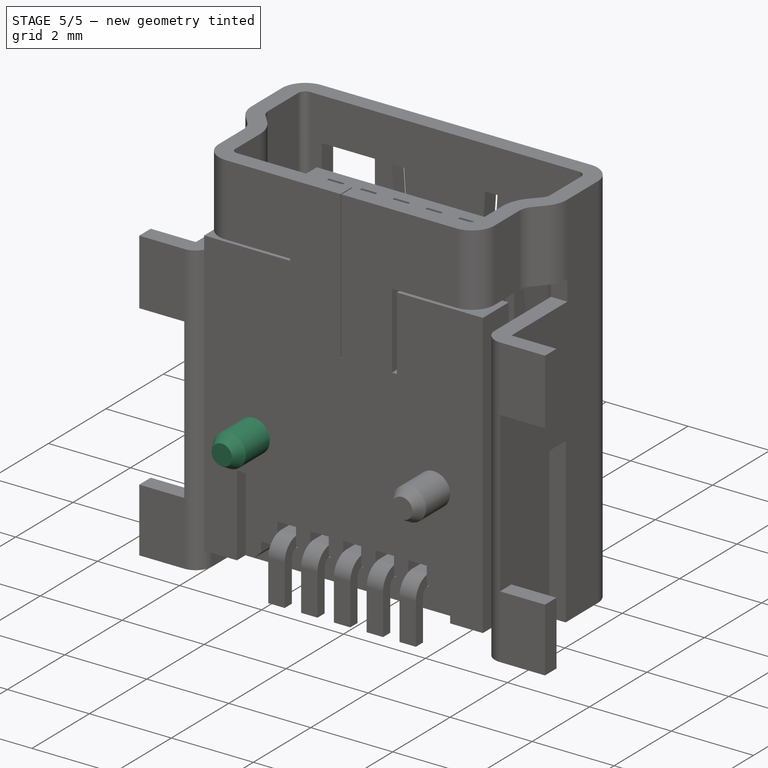
[diagram: stage 5 of 5 — iso view after this stage's code; geometry added in this stage tinted green]
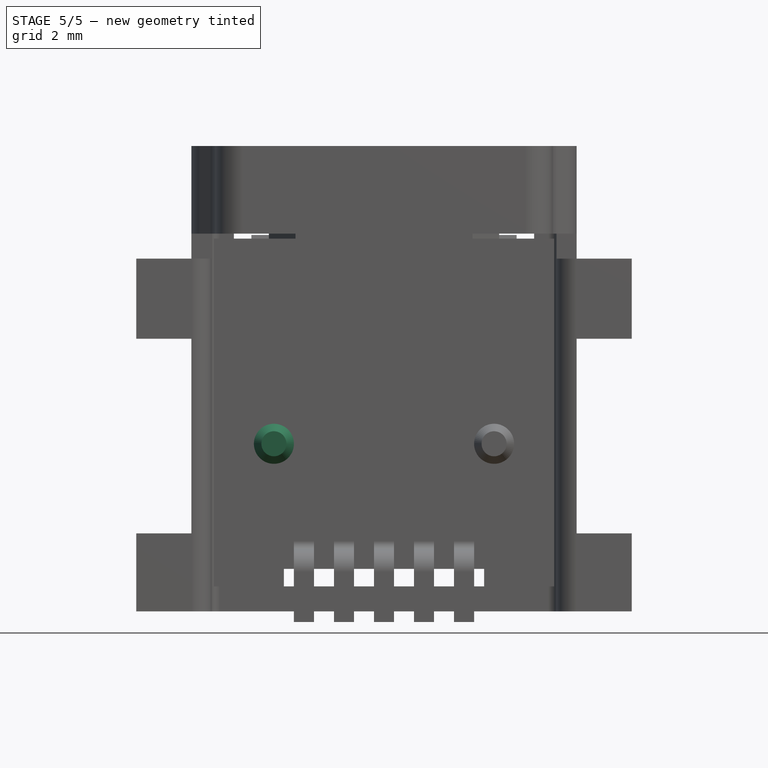
[diagram: stage 5 of 5 — front view after this stage's code; geometry added in this stage tinted green]
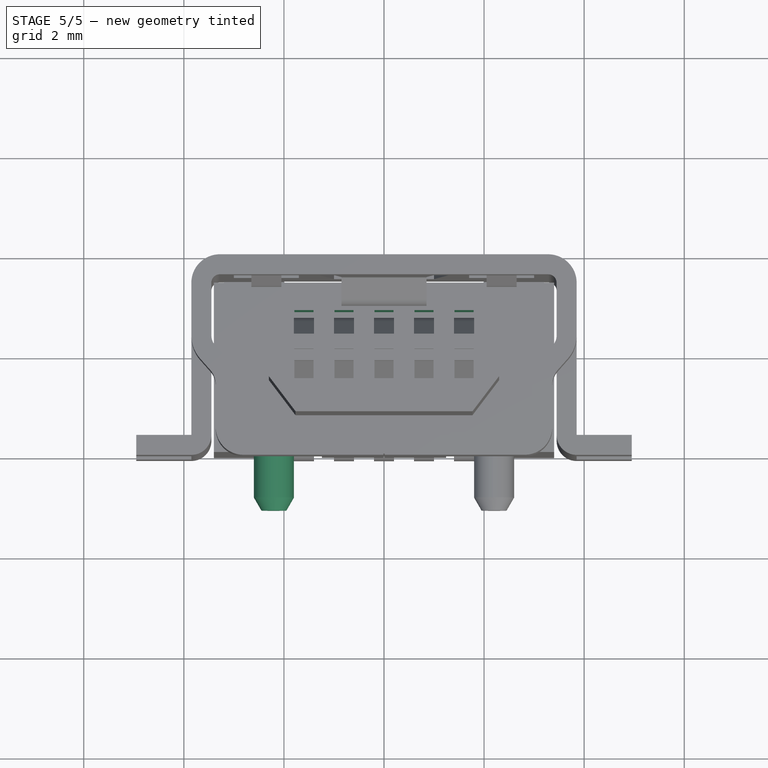
[diagram: stage 5 of 5 — top view after this stage's code; geometry added in this stage tinted green]
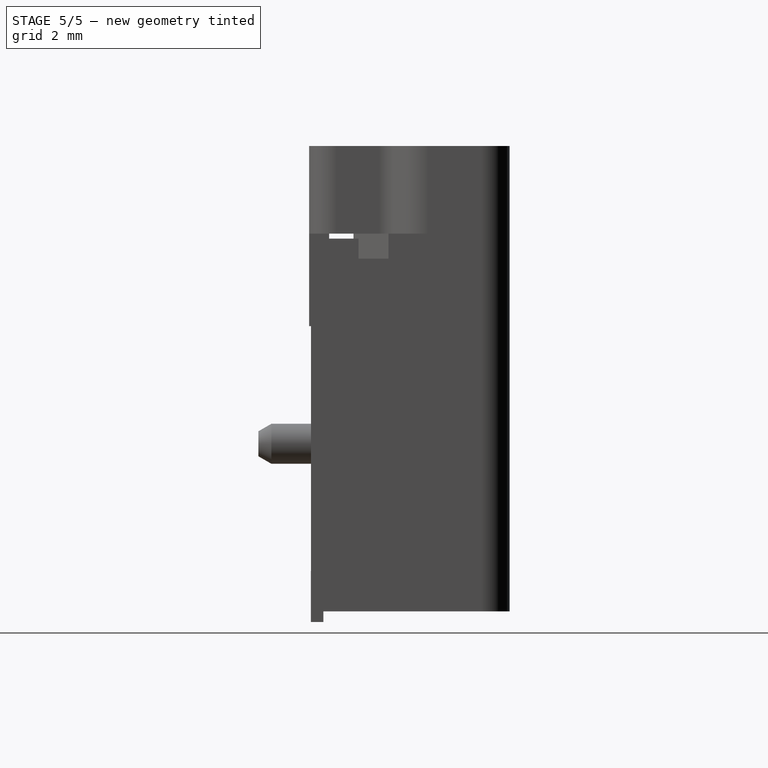
[diagram: stage 5 of 5 — right view after this stage's code; geometry added in this stage tinted green]
FEATURE [Sketcher::SketchObject] Sketch008  label="cutout-7-sketch"
  Placement = pos=(0,0,0.95) rot=(0.707107,0.707107,0;3.14159rad)
  Support = -> Pocket005 [Face30]
  sketch-geometry (4):
    g0: LineSegment StartX=1.47 StartY=1.79 StartZ=0 EndX=2.9 EndY=1.79 EndZ=0
    g1: LineSegment StartX=2.9 StartY=1.79 StartZ=0 EndX=2.9 EndY=1.41 EndZ=0
    g2: LineSegment StartX=2.9 StartY=1.41 StartZ=0 EndX=1.47 EndY=1.41 EndZ=0
    g3: LineSegment StartX=1.47 StartY=1.41 StartZ=0 EndX=1.47 EndY=1.79 EndZ=0
  constraints (12):
    c: Coincident(g0,g1)
    c: Coincident(g1,g2)
    c: Coincident(g2,g3)
    c: Coincident(g3,g0)
    c: Horizontal(g0)
    c: Horizontal(g2)
    c: Vertical(g1)
    c: Vertical(g3)
    c: DistanceX(g-1,g2) = 1.47
    c: DistanceY(g-1,g0) = 1.79
    c: DistanceX(g0) = 1.43
    c: DistanceY(g1) = -0.38
FEATURE [PartDesign::Pocket] Pocket006  label="cutout-7"
  Length = 6.3
  Placement = pos=(0,0,0) rot=(0.57735,0.57735,0.57735;2.0944rad)
  Sketch = -> Sketch008
  Type = 0
FEATURE [PartDesign::LinearPattern] LinearPattern  label="slots-for-pins"
  Direction = -> Sketch008 [V_Axis]
  Length = 3.2
  Occurrences = 5
  Originals = -> [Pocket006]
  Placement = pos=(0,0,0) rot=(0.57735,0.57735,0.57735;2.0944rad)
  Reversed = true
FEATURE [Sketcher::SketchObject] Sketch009  label="cutout-8-sketch"
  Placement = pos=(0,0,7.85) rot=(0,0,-1;1.5708rad)
  Support = -> LinearPattern [Face61]
  sketch-geometry (4):
    g0: LineSegment StartX=-2.05 StartY=1.79 StartZ=0 EndX=-1.46 EndY=1.79 EndZ=0
    g1: LineSegment StartX=-1.46 StartY=1.79 StartZ=0 EndX=-1.46 EndY=1.41 EndZ=0
    g2: LineSegment StartX=-1.46 StartY=1.41 StartZ=0 EndX=-2.05 EndY=1.41 EndZ=0
    g3: LineSegment StartX=-2.05 StartY=1.41 StartZ=0 EndX=-2.05 EndY=1.79 EndZ=0
  constraints (12):
    c: Coincident(g0,g1)
    c: Coincident(g1,g2)
    c: Coincident(g2,g3)
    c: Coincident(g3,g0)
    c: Horizontal(g0)
    c: Horizontal(g2)
    c: Vertical(g1)
    c: Vertical(g3)
    c: DistanceX(g-1,g0) = -1.46
    c: DistanceY(g-1,g0) = 1.79
    c: DistanceY(g1) = -0.38
    c: DistanceX(g0) = 0.59
FEATURE [PartDesign::Pocket] Pocket007  label="cutout-8"
  Length = 5
  Placement = pos=(0,0,0) rot=(0.57735,0.57735,0.57735;2.0944rad)
  Sketch = -> Sketch009
  Type = 1
FEATURE [PartDesign::LinearPattern] LinearPattern001
  Direction = -> Sketch009 [V_Axis]
  Length = 3.2
  Occurrences = 5
  Originals = -> [Pocket007]
  Placement = pos=(0,0,0) rot=(0.57735,0.57735,0.57735;2.0944rad)
  Reversed = true
FEATURE [Part::MultiFuse] Fusion  label="main-body-final"
  Shapes = -> [LinearPattern001,Revolution,Clone]
FEATURE [Part::FeaturePython] Clone001  label="main-body-final001"  # Draft clone (typed FeaturePython)
  Objects = -> [Fusion]
  Scale = (1,1,1)
FEATURE [Part::Compound] Compound  label="mini-usb-b-female-smd"
  Links = -> [Clone001,Clone002,Clone003]
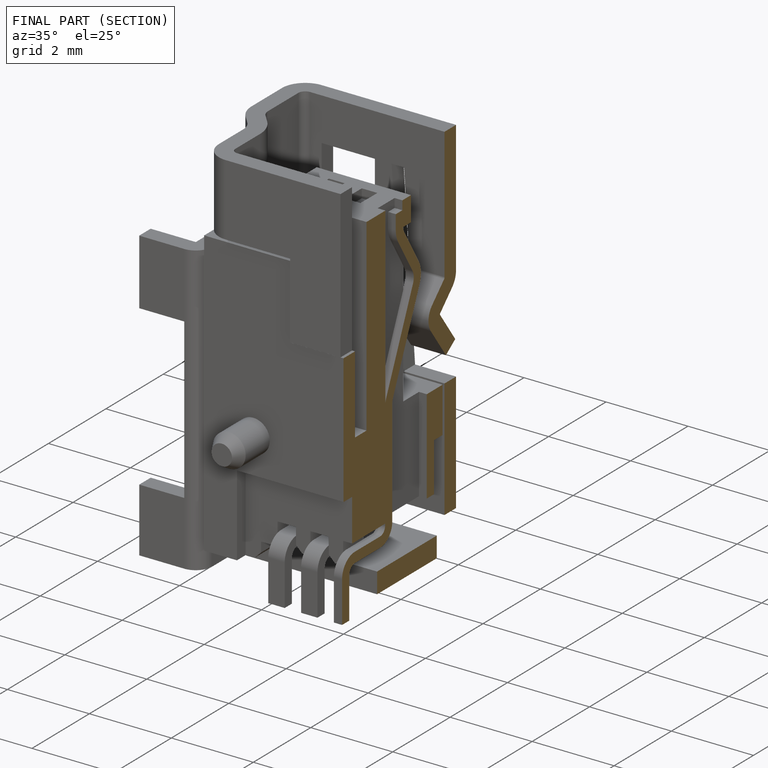
[diagram: finished part — half-section view (interior)]
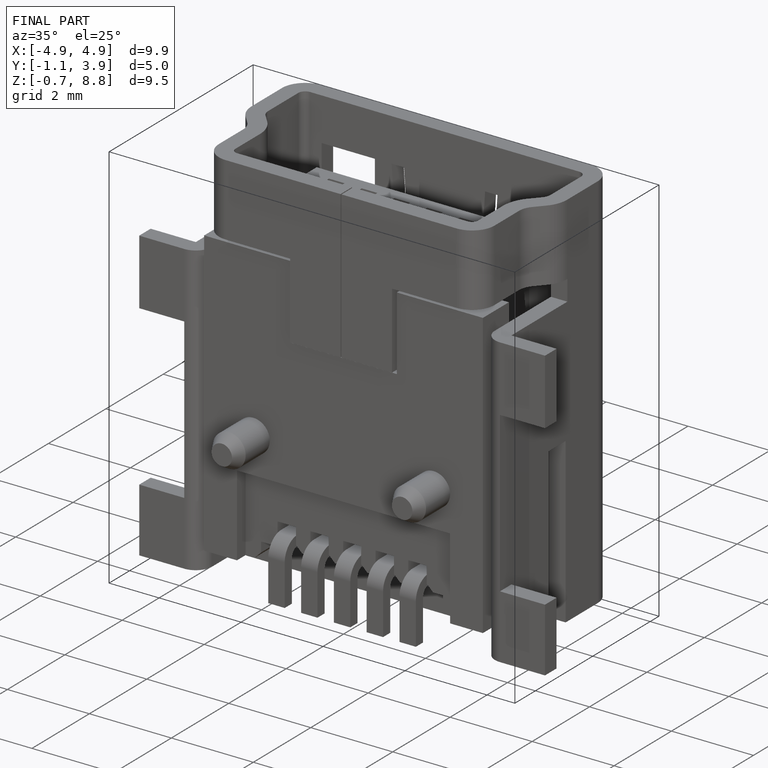
[diagram: finished part — iso view with bounding-box wireframe]
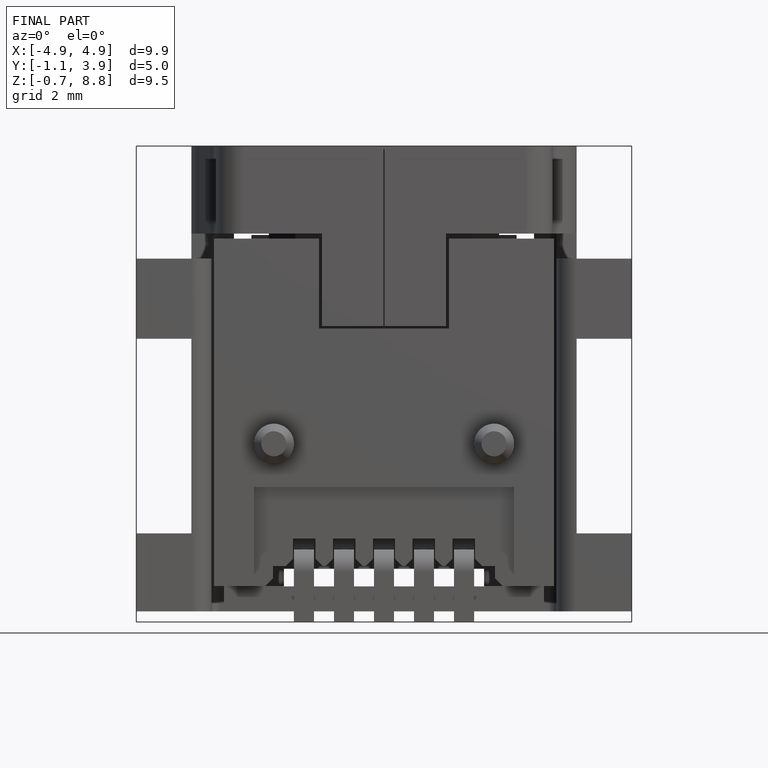
[diagram: finished part — front view with bounding-box wireframe]
